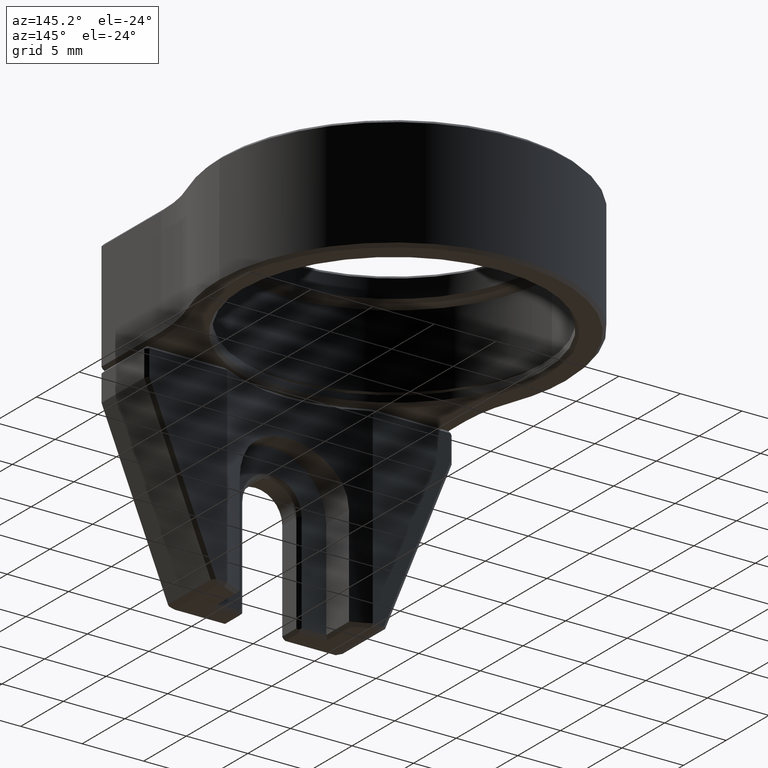
[diagram: clean part render]
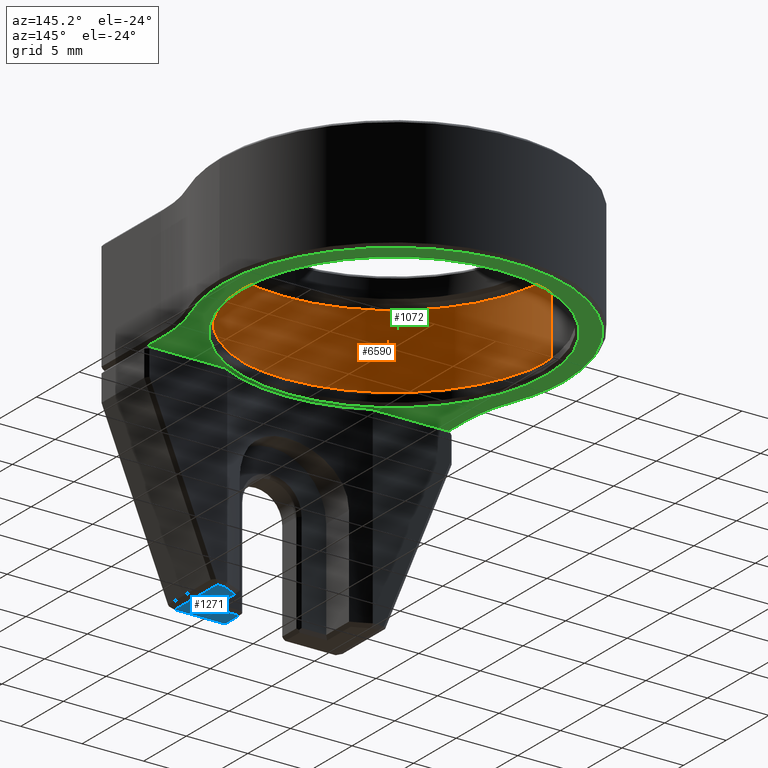
[diagram: same view with three faces highlighted in distinct colors, each labeled with its STEP entity id]
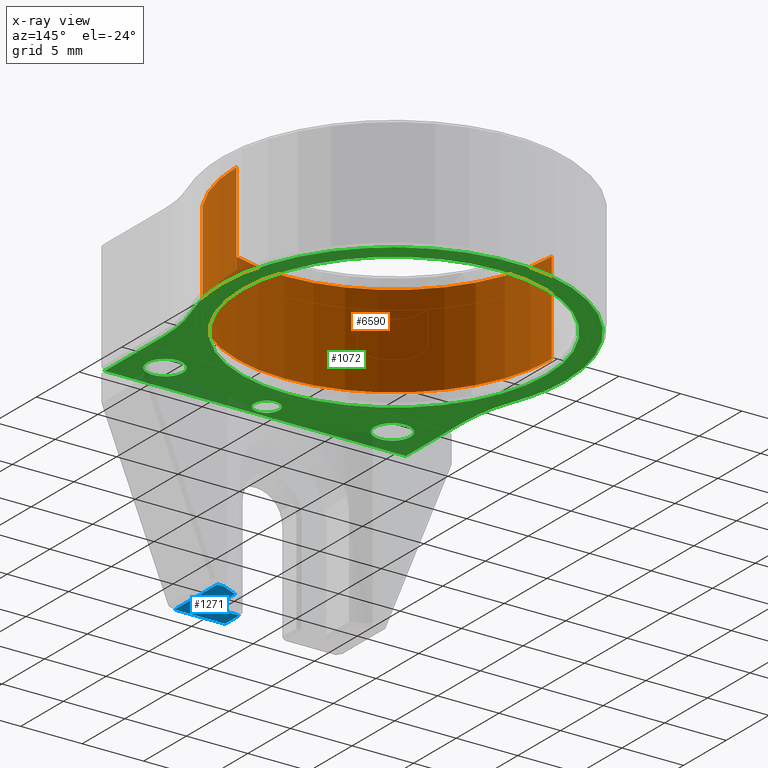
[diagram: x-ray of the same camera — body ghosted, the three highlighted faces saturated]
A machine part, auxiliary view with three faces highlighted in distinct colors.
The next image is the same camera in x-ray (body ghosted, the three faces saturated) — at least one of them is partly hidden behind the body in this view.
Their STEP definitions:

[orange] entity #6590 — the highlighted cylindrical surface (partial cylindrical patch) has radius 12.827 mm, axis along (-0, -0, 1).
#265 = CARTESIAN_POINT ( 'NONE',  ( 12.82699999999999996, 16.50000000000000000, -0.5000000000000073275 ) ) ;
#343 = EDGE_CURVE ( 'NONE', #4743, #1871, #5606, .T. ) ;
#456 = ORIENTED_EDGE ( 'NONE', *, *, #343, .T. ) ;
#689 = CARTESIAN_POINT ( 'NONE',  ( -12.82699999999999996, 16.50000000000000000, -45.58023472911938256 ) ) ;
#758 = CARTESIAN_POINT ( 'NONE',  ( -12.82699999999999996, 16.50000000000000000, -8.000000000000000000 ) ) ;
#880 = DIRECTION ( 'NONE',  ( 0.000000000000000000, 0.000000000000000000, 1.000000000000000000 ) ) ;
#974 = AXIS2_PLACEMENT_3D ( 'NONE', #4258, #2094, #4750 ) ;
#1193 = LINE ( 'NONE', #689, #3851 ) ;
#1707 = AXIS2_PLACEMENT_3D ( 'NONE', #4564, #880, #5104 ) ;
#1868 = ORIENTED_EDGE ( 'NONE', *, *, #4290, .F. ) ;
#1871 = VERTEX_POINT ( 'NONE', #265 ) ;
#1946 = VECTOR ( 'NONE', #3554, 1000.000000000000000 ) ;
#2094 = DIRECTION ( 'NONE',  ( -0.000000000000000000, -0.000000000000000000, -1.000000000000000000 ) ) ;
#2244 = EDGE_LOOP ( 'NONE', ( #4780, #5944, #456, #1868 ) ) ;
#2290 = CARTESIAN_POINT ( 'NONE',  ( 12.82699999999999996, 16.50000000000000000, -8.000000000000000000 ) ) ;
#3105 = VERTEX_POINT ( 'NONE', #2290 ) ;
#3488 = EDGE_CURVE ( 'NONE', #3490, #4743, #1193, .T. ) ;
#3490 = VERTEX_POINT ( 'NONE', #758 ) ;
#3532 = CARTESIAN_POINT ( 'NONE',  ( 12.82699999999999996, 16.50000000000000000, -45.58023472911938256 ) ) ;
#3554 = DIRECTION ( 'NONE',  ( -0.000000000000000000, -0.000000000000000000, 1.000000000000000000 ) ) ;
#3689 = DIRECTION ( 'NONE',  ( 1.000000000000000000, 0.000000000000000000, 0.000000000000000000 ) ) ;
#3851 = VECTOR ( 'NONE', #5993, 1000.000000000000000 ) ;
#4258 = CARTESIAN_POINT ( 'NONE',  ( 0.000000000000000000, 16.50000000000000000, -8.000000000000000000 ) ) ;
#4290 = EDGE_CURVE ( 'NONE', #3105, #1871, #4797, .T. ) ;
#4355 = CARTESIAN_POINT ( 'NONE',  ( -12.82699999999999996, 16.50000000000000000, -0.5000000000000073275 ) ) ;
#4407 = CYLINDRICAL_SURFACE ( 'NONE', #5523, 12.82699999999999996 ) ;
#4564 = CARTESIAN_POINT ( 'NONE',  ( 0.000000000000000000, 16.50000000000000000, -0.5000000000000073275 ) ) ;
#4583 = EDGE_CURVE ( 'NONE', #3105, #3490, #4714, .T. ) ;
#4714 = CIRCLE ( 'NONE', #974, 12.82699999999999996 ) ;
#4743 = VERTEX_POINT ( 'NONE', #4355 ) ;
#4750 = DIRECTION ( 'NONE',  ( 1.000000000000000000, 0.000000000000000000, 0.000000000000000000 ) ) ;
#4780 = ORIENTED_EDGE ( 'NONE', *, *, #4583, .T. ) ;
#4797 = LINE ( 'NONE', #3532, #1946 ) ;
#5104 = DIRECTION ( 'NONE',  ( 1.000000000000000000, 0.000000000000000000, 0.000000000000000000 ) ) ;
#5523 = AXIS2_PLACEMENT_3D ( 'NONE', #5706, #6256, #3689 ) ;
#5606 = CIRCLE ( 'NONE', #1707, 12.82699999999999996 ) ;
#5624 = FACE_OUTER_BOUND ( 'NONE', #2244, .T. ) ;
#5706 = CARTESIAN_POINT ( 'NONE',  ( 0.000000000000000000, 16.50000000000000000, -45.58023472911938256 ) ) ;
#5944 = ORIENTED_EDGE ( 'NONE', *, *, #3488, .T. ) ;
#5993 = DIRECTION ( 'NONE',  ( -0.000000000000000000, -0.000000000000000000, 1.000000000000000000 ) ) ;
#6256 = DIRECTION ( 'NONE',  ( -0.000000000000000000, -0.000000000000000000, 1.000000000000000000 ) ) ;
#6590 = ADVANCED_FACE ( 'NONE', ( #5624 ), #4407, .F. ) ;

[blue] entity #1271 — the highlighted planar face has unit normal (0, 0, 1).
#3 = PLANE ( 'NONE',  #2363 ) ;
#59 = LINE ( 'NONE', #6493, #3200 ) ;
#60 = VECTOR ( 'NONE', #4684, 1000.000000000000000 ) ;
#446 = CARTESIAN_POINT ( 'NONE',  ( 2.450000000000005063, 0.2500000000000032752, -25.30000000000000426 ) ) ;
#451 = ORIENTED_EDGE ( 'NONE', *, *, #1748, .T. ) ;
#713 = LINE ( 'NONE', #4162, #60 ) ;
#850 = EDGE_CURVE ( 'NONE', #2558, #1183, #4441, .T. ) ;
#983 = DIRECTION ( 'NONE',  ( 0.000000000000000000, 0.000000000000000000, 1.000000000000000000 ) ) ;
#997 = EDGE_CURVE ( 'NONE', #1466, #5124, #3711, .T. ) ;
#1183 = VERTEX_POINT ( 'NONE', #2048 ) ;
#1242 = CARTESIAN_POINT ( 'NONE',  ( 4.700000000000001954, 1.909999999999996367, -25.30000000000000426 ) ) ;
#1271 = ADVANCED_FACE ( 'NONE', ( #5572 ), #3, .F. ) ;
#1305 = VERTEX_POINT ( 'NONE', #5191 ) ;
#1448 = EDGE_CURVE ( 'NONE', #4089, #1305, #59, .T. ) ;
#1466 = VERTEX_POINT ( 'NONE', #1805 ) ;
#1605 = CARTESIAN_POINT ( 'NONE',  ( 2.200000000000001510, 0.2500000000000032752, -25.30000000000000426 ) ) ;
#1711 = VECTOR ( 'NONE', #4805, 1000.000000000000000 ) ;
#1735 = DIRECTION ( 'NONE',  ( 0.000000000000000000, 0.000000000000000000, 1.000000000000000000 ) ) ;
#1748 = EDGE_CURVE ( 'NONE', #1305, #2558, #6488, .T. ) ;
#1805 = CARTESIAN_POINT ( 'NONE',  ( 6.547574579020285057, 0.2500000000000032752, -25.30000000000000426 ) ) ;
#1881 = AXIS2_PLACEMENT_3D ( 'NONE', #5847, #1735, #2788 ) ;
#2048 = CARTESIAN_POINT ( 'NONE',  ( 6.547574579020285057, 5.249999999999995559, -25.30000000000000426 ) ) ;
#2363 = AXIS2_PLACEMENT_3D ( 'NONE', #5685, #983, #2559 ) ;
#2382 = DIRECTION ( 'NONE',  ( 1.000000000000000000, 0.000000000000000000, 0.000000000000000000 ) ) ;
#2504 = CARTESIAN_POINT ( 'NONE',  ( 2.450000000000005063, 1.909999999999996367, -25.30000000000000426 ) ) ;
#2558 = VERTEX_POINT ( 'NONE', #4846 ) ;
#2559 = DIRECTION ( 'NONE',  ( 1.000000000000000000, 0.000000000000000000, -0.000000000000000000 ) ) ;
#2611 = VECTOR ( 'NONE', #2382, 1000.000000000000000 ) ;
#2641 = EDGE_CURVE ( 'NONE', #5124, #6507, #3954, .T. ) ;
#2788 = DIRECTION ( 'NONE',  ( 1.000000000000000000, 0.000000000000000000, 0.000000000000000000 ) ) ;
#2928 = EDGE_CURVE ( 'NONE', #6507, #4089, #3131, .T. ) ;
#3131 = LINE ( 'NONE', #5525, #2611 ) ;
#3200 = VECTOR ( 'NONE', #4891, 1000.000000000000000 ) ;
#3427 = ORIENTED_EDGE ( 'NONE', *, *, #2928, .T. ) ;
#3711 = LINE ( 'NONE', #1605, #5085 ) ;
#3715 = ORIENTED_EDGE ( 'NONE', *, *, #2641, .T. ) ;
#3927 = ORIENTED_EDGE ( 'NONE', *, *, #1448, .T. ) ;
#3954 = LINE ( 'NONE', #5890, #1711 ) ;
#3966 = VECTOR ( 'NONE', #5517, 1000.000000000000000 ) ;
#3975 = ORIENTED_EDGE ( 'NONE', *, *, #850, .T. ) ;
#4009 = ORIENTED_EDGE ( 'NONE', *, *, #997, .T. ) ;
#4089 = VERTEX_POINT ( 'NONE', #1242 ) ;
#4162 = CARTESIAN_POINT ( 'NONE',  ( 6.547574579020285057, -4.336808689942017736E-16, -25.30000000000000426 ) ) ;
#4221 = EDGE_LOOP ( 'NONE', ( #451, #3975, #5005, #4009, #3715, #3427, #3927 ) ) ;
#4441 = LINE ( 'NONE', #4503, #3966 ) ;
#4503 = CARTESIAN_POINT ( 'NONE',  ( 6.999999999999998224, 5.249999999999995559, -25.30000000000000426 ) ) ;
#4684 = DIRECTION ( 'NONE',  ( 0.000000000000000000, -1.000000000000000000, 0.000000000000000000 ) ) ;
#4805 = DIRECTION ( 'NONE',  ( -0.000000000000000000, 1.000000000000000000, 0.000000000000000000 ) ) ;
#4846 = CARTESIAN_POINT ( 'NONE',  ( 5.981212251709513872, 5.249999999999994671, -25.30000000000000426 ) ) ;
#4891 = DIRECTION ( 'NONE',  ( -0.000000000000000000, 1.000000000000000000, 0.000000000000000000 ) ) ;
#5005 = ORIENTED_EDGE ( 'NONE', *, *, #5549, .T. ) ;
#5085 = VECTOR ( 'NONE', #5267, 1000.000000000000000 ) ;
#5124 = VERTEX_POINT ( 'NONE', #446 ) ;
#5191 = CARTESIAN_POINT ( 'NONE',  ( 4.700000000000001954, 4.657890483124950798, -25.30000000000000426 ) ) ;
#5267 = DIRECTION ( 'NONE',  ( -1.000000000000000000, 0.000000000000000000, 0.000000000000000000 ) ) ;
#5517 = DIRECTION ( 'NONE',  ( 1.000000000000000000, 0.000000000000000000, 0.000000000000000000 ) ) ;
#5525 = CARTESIAN_POINT ( 'NONE',  ( 0.000000000000000000, 1.909999999999996367, -25.30000000000000426 ) ) ;
#5549 = EDGE_CURVE ( 'NONE', #1183, #1466, #713, .T. ) ;
#5572 = FACE_OUTER_BOUND ( 'NONE', #4221, .T. ) ;
#5685 = CARTESIAN_POINT ( 'NONE',  ( 0.000000000000000000, 16.50000000000000000, -25.30000000000000426 ) ) ;
#5847 = CARTESIAN_POINT ( 'NONE',  ( 0.000000000000000000, 16.51000000000000156, -25.30000000000000426 ) ) ;
#5890 = CARTESIAN_POINT ( 'NONE',  ( 2.450000000000005063, 16.50000000000000000, -25.30000000000000426 ) ) ;
#6488 = CIRCLE ( 'NONE', #1881, 12.75000000000000355 ) ;
#6493 = CARTESIAN_POINT ( 'NONE',  ( 4.700000000000001954, 16.50000000000000000, -25.30000000000000426 ) ) ;
#6507 = VERTEX_POINT ( 'NONE', #2504 ) ;

[green] entity #1072 — the highlighted planar face has unit normal (0, 0, 1).
#14 = AXIS2_PLACEMENT_3D ( 'NONE', #1865, #6019, #1885 ) ;
#17 = VECTOR ( 'NONE', #4274, 1000.000000000000000 ) ;
#19 = DIRECTION ( 'NONE',  ( 0.000000000000000000, 0.000000000000000000, 1.000000000000000000 ) ) ;
#65 = EDGE_CURVE ( 'NONE', #1861, #3964, #3168, .T. ) ;
#112 = CARTESIAN_POINT ( 'NONE',  ( -12.25000000000000000, 16.50000000000000000, -9.300000000000000711 ) ) ;
#136 = ORIENTED_EDGE ( 'NONE', *, *, #5484, .T. ) ;
#202 = EDGE_CURVE ( 'NONE', #3964, #6499, #4699, .T. ) ;
#251 = EDGE_CURVE ( 'NONE', #1508, #3257, #3822, .T. ) ;
#344 = DIRECTION ( 'NONE',  ( 0.000000000000000000, -1.000000000000000000, 0.000000000000000000 ) ) ;
#350 = EDGE_CURVE ( 'NONE', #1824, #4698, #1664, .T. ) ;
#421 = EDGE_CURVE ( 'NONE', #6029, #5768, #4458, .T. ) ;
#454 = CIRCLE ( 'NONE', #6089, 1.449999999999996403 ) ;
#471 = DIRECTION ( 'NONE',  ( -0.000000000000000000, -0.000000000000000000, 1.000000000000000000 ) ) ;
#502 = CARTESIAN_POINT ( 'NONE',  ( -12.25000000000000000, 7.216143042894296755, -9.300000000000000711 ) ) ;
#568 = VERTEX_POINT ( 'NONE', #5544 ) ;
#585 = DIRECTION ( 'NONE',  ( -0.000000000000000000, -0.000000000000000000, -1.000000000000000000 ) ) ;
#600 = ORIENTED_EDGE ( 'NONE', *, *, #4104, .T. ) ;
#752 = CARTESIAN_POINT ( 'NONE',  ( 9.250000000000000000, 3.000000000000000000, -9.300000000000000711 ) ) ;
#790 = DIRECTION ( 'NONE',  ( 1.000000000000000000, 0.000000000000000000, 0.000000000000000000 ) ) ;
#816 = ORIENTED_EDGE ( 'NONE', *, *, #5046, .T. ) ;
#860 = CARTESIAN_POINT ( 'NONE',  ( -13.04484732824427518, 11.55687768886929234, -9.300000000000000711 ) ) ;
#906 = CARTESIAN_POINT ( 'NONE',  ( 13.04484732824427518, 11.55687768886929234, -9.300000000000000711 ) ) ;
#911 = CARTESIAN_POINT ( 'NONE',  ( 1.000000000000000000, 1.600000000000000311, -9.300000000000000711 ) ) ;
#931 = ORIENTED_EDGE ( 'NONE', *, *, #5643, .T. ) ;
#978 = CARTESIAN_POINT ( 'NONE',  ( -9.250000000000000000, 3.000000000000000000, -9.300000000000000711 ) ) ;
#991 = DIRECTION ( 'NONE',  ( 1.000000000000000000, 0.000000000000000000, 0.000000000000000000 ) ) ;
#1002 = CARTESIAN_POINT ( 'NONE',  ( 12.25000000000000000, 0.2500000000000002220, -9.300000000000000711 ) ) ;
#1006 = DIRECTION ( 'NONE',  ( 0.000000000000000000, 0.000000000000000000, 1.000000000000000000 ) ) ;
#1025 = DIRECTION ( 'NONE',  ( 1.000000000000000000, 0.000000000000000000, 0.000000000000000000 ) ) ;
#1035 = DIRECTION ( 'NONE',  ( 1.000000000000000000, 0.000000000000000000, 0.000000000000000000 ) ) ;
#1037 = CIRCLE ( 'NONE', #1918, 1.449999999999996403 ) ;
#1072 = ADVANCED_FACE ( 'NONE', ( #3618, #4824, #2542, #3703, #2807 ), #6527, .F. ) ;
#1124 = ORIENTED_EDGE ( 'NONE', *, *, #202, .T. ) ;
#1238 = CARTESIAN_POINT ( 'NONE',  ( -13.95000000000000107, 16.50000000000000000, -9.300000000000000711 ) ) ;
#1250 = EDGE_CURVE ( 'NONE', #6032, #6473, #4499, .T. ) ;
#1321 = DIRECTION ( 'NONE',  ( -1.000000000000000000, 0.000000000000000000, 0.000000000000000000 ) ) ;
#1343 = AXIS2_PLACEMENT_3D ( 'NONE', #4520, #2494, #1908 ) ;
#1435 = ORIENTED_EDGE ( 'NONE', *, *, #6645, .T. ) ;
#1439 = CIRCLE ( 'NONE', #5700, 13.95000000000000107 ) ;
#1442 = DIRECTION ( 'NONE',  ( 1.000000000000000000, 0.000000000000000000, 0.000000000000000000 ) ) ;
#1479 = EDGE_CURVE ( 'NONE', #1935, #4401, #4589, .T. ) ;
#1504 = CARTESIAN_POINT ( 'NONE',  ( 9.250000000000000000, 3.000000000000000000, -9.300000000000000711 ) ) ;
#1508 = VERTEX_POINT ( 'NONE', #6561 ) ;
#1543 = CARTESIAN_POINT ( 'NONE',  ( 24.50000000000000000, 7.216143042894296755, -9.300000000000000711 ) ) ;
#1647 = CARTESIAN_POINT ( 'NONE',  ( 13.95000000000000107, 16.50000000000000000, -9.300000000000000711 ) ) ;
#1664 = CIRCLE ( 'NONE', #1343, 12.37700000000000244 ) ;
#1699 = ORIENTED_EDGE ( 'NONE', *, *, #6509, .T. ) ;
#1749 = CARTESIAN_POINT ( 'NONE',  ( 0.000000000000000000, 16.50000000000000000, -9.300000000000000711 ) ) ;
#1752 = DIRECTION ( 'NONE',  ( -0.000000000000000000, -0.000000000000000000, 1.000000000000000000 ) ) ;
#1802 = AXIS2_PLACEMENT_3D ( 'NONE', #1504, #471, #991 ) ;
#1824 = VERTEX_POINT ( 'NONE', #5540 ) ;
#1839 = DIRECTION ( 'NONE',  ( -0.000000000000000000, -0.000000000000000000, 1.000000000000000000 ) ) ;
#1861 = VERTEX_POINT ( 'NONE', #1238 ) ;
#1865 = CARTESIAN_POINT ( 'NONE',  ( 0.000000000000000000, 16.50000000000000000, -9.300000000000000711 ) ) ;
#1885 = DIRECTION ( 'NONE',  ( 1.000000000000000000, 0.000000000000000000, -0.000000000000000000 ) ) ;
#1908 = DIRECTION ( 'NONE',  ( 1.000000000000000000, 0.000000000000000000, 0.000000000000000000 ) ) ;
#1918 = AXIS2_PLACEMENT_3D ( 'NONE', #2344, #1839, #790 ) ;
#1935 = VERTEX_POINT ( 'NONE', #1937 ) ;
#1937 = CARTESIAN_POINT ( 'NONE',  ( 12.25000000000000000, 7.216143042894296755, -9.300000000000000711 ) ) ;
#2014 = DIRECTION ( 'NONE',  ( 1.000000000000000000, 0.000000000000000000, 0.000000000000000000 ) ) ;
#2016 = ORIENTED_EDGE ( 'NONE', *, *, #1479, .T. ) ;
#2070 = CARTESIAN_POINT ( 'NONE',  ( 0.000000000000000000, 1.600000000000000089, -9.300000000000000711 ) ) ;
#2134 = ORIENTED_EDGE ( 'NONE', *, *, #6315, .T. ) ;
#2139 = DIRECTION ( 'NONE',  ( 1.000000000000000000, 0.000000000000000000, 0.000000000000000000 ) ) ;
#2163 = CARTESIAN_POINT ( 'NONE',  ( 0.000000000000000000, 16.50000000000000000, -9.300000000000000711 ) ) ;
#2217 = ORIENTED_EDGE ( 'NONE', *, *, #3312, .F. ) ;
#2276 = CARTESIAN_POINT ( 'NONE',  ( -10.69999999999999574, 3.000000000000000000, -9.300000000000000711 ) ) ;
#2295 = CARTESIAN_POINT ( 'NONE',  ( 7.800000000000003375, 3.000000000000000000, -9.300000000000000711 ) ) ;
#2344 = CARTESIAN_POINT ( 'NONE',  ( -9.250000000000000000, 3.000000000000000000, -9.300000000000000711 ) ) ;
#2494 = DIRECTION ( 'NONE',  ( 0.000000000000000000, 0.000000000000000000, 1.000000000000000000 ) ) ;
#2542 = FACE_BOUND ( 'NONE', #3052, .T. ) ;
#2593 = ORIENTED_EDGE ( 'NONE', *, *, #5973, .T. ) ;
#2633 = DIRECTION ( 'NONE',  ( -0.000000000000000000, -0.000000000000000000, 1.000000000000000000 ) ) ;
#2755 = DIRECTION ( 'NONE',  ( 0.000000000000000000, 1.000000000000000000, 0.000000000000000000 ) ) ;
#2771 = DIRECTION ( 'NONE',  ( 1.000000000000000000, 0.000000000000000000, 0.000000000000000000 ) ) ;
#2807 = FACE_BOUND ( 'NONE', #3227, .T. ) ;
#2875 = VERTEX_POINT ( 'NONE', #3294 ) ;
#2929 = LINE ( 'NONE', #4764, #17 ) ;
#2969 = CARTESIAN_POINT ( 'NONE',  ( 12.25000000000000000, 16.50000000000000000, -9.300000000000000711 ) ) ;
#3050 = CIRCLE ( 'NONE', #3664, 1.449999999999996403 ) ;
#3052 = EDGE_LOOP ( 'NONE', ( #3119, #2217 ) ) ;
#3119 = ORIENTED_EDGE ( 'NONE', *, *, #251, .F. ) ;
#3168 = CIRCLE ( 'NONE', #5103, 13.95000000000000107 ) ;
#3201 = CIRCLE ( 'NONE', #4298, 12.25000000000000355 ) ;
#3227 = EDGE_LOOP ( 'NONE', ( #5427, #2134 ) ) ;
#3257 = VERTEX_POINT ( 'NONE', #911 ) ;
#3294 = CARTESIAN_POINT ( 'NONE',  ( -7.800000000000003375, 3.000000000000000000, -9.300000000000000711 ) ) ;
#3312 = EDGE_CURVE ( 'NONE', #3257, #1508, #4172, .T. ) ;
#3344 = AXIS2_PLACEMENT_3D ( 'NONE', #5910, #5529, #1321 ) ;
#3552 = AXIS2_PLACEMENT_3D ( 'NONE', #2163, #6332, #3827 ) ;
#3618 = FACE_BOUND ( 'NONE', #5452, .T. ) ;
#3664 = AXIS2_PLACEMENT_3D ( 'NONE', #752, #1752, #2014 ) ;
#3703 = FACE_BOUND ( 'NONE', #6577, .T. ) ;
#3822 = CIRCLE ( 'NONE', #3344, 1.000000000000000000 ) ;
#3827 = DIRECTION ( 'NONE',  ( 1.000000000000000000, 0.000000000000000000, 0.000000000000000000 ) ) ;
#3835 = CIRCLE ( 'NONE', #3552, 12.37700000000000244 ) ;
#3964 = VERTEX_POINT ( 'NONE', #1647 ) ;
#4022 = VECTOR ( 'NONE', #2755, 1000.000000000000000 ) ;
#4104 = EDGE_CURVE ( 'NONE', #2875, #6771, #1037, .T. ) ;
#4141 = DIRECTION ( 'NONE',  ( -1.000000000000000000, 0.000000000000000000, 0.000000000000000000 ) ) ;
#4154 = CARTESIAN_POINT ( 'NONE',  ( 10.69999999999999574, 3.000000000000000000, -9.300000000000000711 ) ) ;
#4172 = CIRCLE ( 'NONE', #6534, 1.000000000000000000 ) ;
#4274 = DIRECTION ( 'NONE',  ( -1.000000000000000000, 0.000000000000000000, 0.000000000000000000 ) ) ;
#4298 = AXIS2_PLACEMENT_3D ( 'NONE', #1543, #19, #2139 ) ;
#4376 = AXIS2_PLACEMENT_3D ( 'NONE', #4687, #1006, #1035 ) ;
#4401 = VERTEX_POINT ( 'NONE', #1002 ) ;
#4458 = CIRCLE ( 'NONE', #1802, 1.449999999999996403 ) ;
#4499 = CIRCLE ( 'NONE', #4376, 12.25000000000000000 ) ;
#4520 = CARTESIAN_POINT ( 'NONE',  ( 0.000000000000000000, 16.50000000000000000, -9.300000000000000711 ) ) ;
#4589 = LINE ( 'NONE', #2969, #6129 ) ;
#4687 = CARTESIAN_POINT ( 'NONE',  ( -24.50000000000000000, 7.216143042894296755, -9.300000000000000711 ) ) ;
#4698 = VERTEX_POINT ( 'NONE', #6454 ) ;
#4699 = CIRCLE ( 'NONE', #6138, 13.95000000000000107 ) ;
#4717 = ORIENTED_EDGE ( 'NONE', *, *, #350, .T. ) ;
#4730 = DIRECTION ( 'NONE',  ( 0.000000000000000000, 0.000000000000000000, -1.000000000000000000 ) ) ;
#4764 = CARTESIAN_POINT ( 'NONE',  ( -12.50000000000000000, 0.2500000000000002220, -9.300000000000000711 ) ) ;
#4824 = FACE_OUTER_BOUND ( 'NONE', #5241, .T. ) ;
#4985 = LINE ( 'NONE', #112, #4022 ) ;
#5046 = EDGE_CURVE ( 'NONE', #4401, #568, #2929, .T. ) ;
#5103 = AXIS2_PLACEMENT_3D ( 'NONE', #5637, #5155, #1442 ) ;
#5155 = DIRECTION ( 'NONE',  ( -0.000000000000000000, -0.000000000000000000, -1.000000000000000000 ) ) ;
#5241 = EDGE_LOOP ( 'NONE', ( #2016, #816, #931, #5601, #2593, #5698, #1124, #136 ) ) ;
#5410 = DIRECTION ( 'NONE',  ( 1.000000000000000000, 0.000000000000000000, 0.000000000000000000 ) ) ;
#5427 = ORIENTED_EDGE ( 'NONE', *, *, #421, .T. ) ;
#5452 = EDGE_LOOP ( 'NONE', ( #1435, #4717 ) ) ;
#5484 = EDGE_CURVE ( 'NONE', #6499, #1935, #3201, .T. ) ;
#5529 = DIRECTION ( 'NONE',  ( 0.000000000000000000, 0.000000000000000000, -1.000000000000000000 ) ) ;
#5540 = CARTESIAN_POINT ( 'NONE',  ( 12.37700000000000244, 16.50000000000000000, -9.300000000000000711 ) ) ;
#5544 = CARTESIAN_POINT ( 'NONE',  ( -12.25000000000000000, 0.2500000000000002220, -9.300000000000000711 ) ) ;
#5601 = ORIENTED_EDGE ( 'NONE', *, *, #1250, .T. ) ;
#5637 = CARTESIAN_POINT ( 'NONE',  ( 0.000000000000000000, 16.50000000000000000, -9.300000000000000711 ) ) ;
#5643 = EDGE_CURVE ( 'NONE', #568, #6032, #4985, .T. ) ;
#5698 = ORIENTED_EDGE ( 'NONE', *, *, #65, .T. ) ;
#5700 = AXIS2_PLACEMENT_3D ( 'NONE', #5776, #585, #2771 ) ;
#5768 = VERTEX_POINT ( 'NONE', #2295 ) ;
#5776 = CARTESIAN_POINT ( 'NONE',  ( 0.000000000000000000, 16.50000000000000000, -9.300000000000000711 ) ) ;
#5839 = DIRECTION ( 'NONE',  ( -0.000000000000000000, -0.000000000000000000, -1.000000000000000000 ) ) ;
#5910 = CARTESIAN_POINT ( 'NONE',  ( 0.000000000000000000, 1.600000000000000089, -9.300000000000000711 ) ) ;
#5973 = EDGE_CURVE ( 'NONE', #6473, #1861, #1439, .T. ) ;
#6019 = DIRECTION ( 'NONE',  ( 0.000000000000000000, 0.000000000000000000, 1.000000000000000000 ) ) ;
#6029 = VERTEX_POINT ( 'NONE', #4154 ) ;
#6032 = VERTEX_POINT ( 'NONE', #502 ) ;
#6089 = AXIS2_PLACEMENT_3D ( 'NONE', #978, #2633, #1025 ) ;
#6129 = VECTOR ( 'NONE', #344, 1000.000000000000000 ) ;
#6138 = AXIS2_PLACEMENT_3D ( 'NONE', #1749, #5839, #5410 ) ;
#6315 = EDGE_CURVE ( 'NONE', #5768, #6029, #3050, .T. ) ;
#6332 = DIRECTION ( 'NONE',  ( 0.000000000000000000, 0.000000000000000000, 1.000000000000000000 ) ) ;
#6454 = CARTESIAN_POINT ( 'NONE',  ( -12.37700000000000244, 16.50000000000000000, -9.300000000000000711 ) ) ;
#6473 = VERTEX_POINT ( 'NONE', #860 ) ;
#6499 = VERTEX_POINT ( 'NONE', #906 ) ;
#6509 = EDGE_CURVE ( 'NONE', #6771, #2875, #454, .T. ) ;
#6527 = PLANE ( 'NONE',  #14 ) ;
#6534 = AXIS2_PLACEMENT_3D ( 'NONE', #2070, #4730, #4141 ) ;
#6561 = CARTESIAN_POINT ( 'NONE',  ( -1.000000000000000000, 1.600000000000000089, -9.300000000000000711 ) ) ;
#6577 = EDGE_LOOP ( 'NONE', ( #600, #1699 ) ) ;
#6645 = EDGE_CURVE ( 'NONE', #4698, #1824, #3835, .T. ) ;
#6771 = VERTEX_POINT ( 'NONE', #2276 ) ;